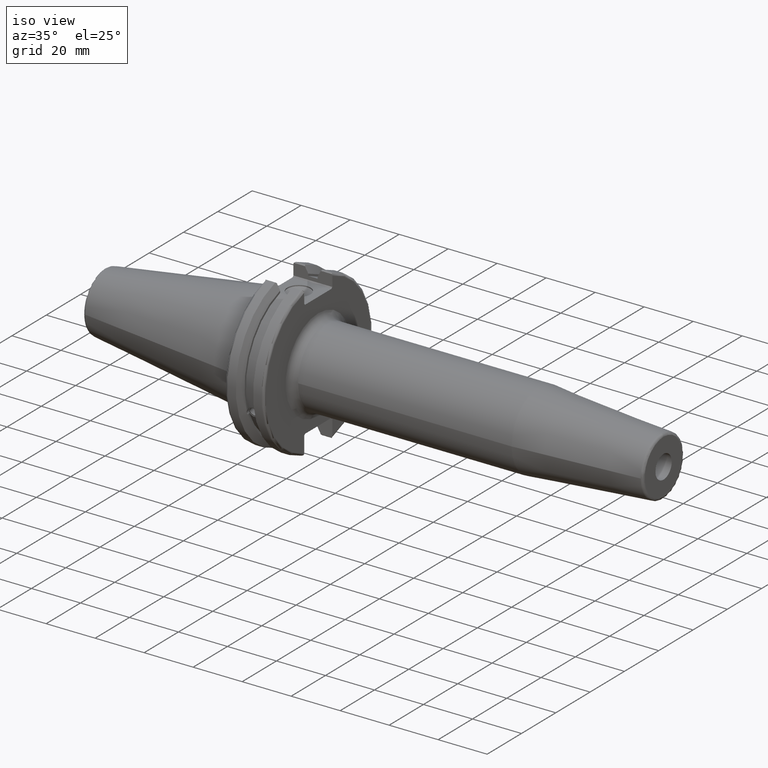
[diagram: clean part render]
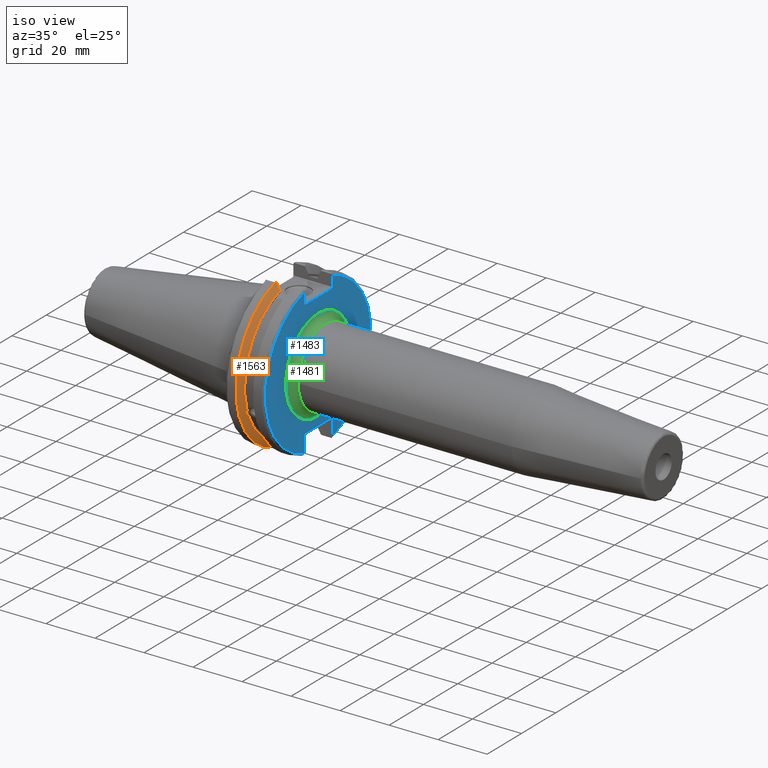
[diagram: same view with three faces highlighted in distinct colors, each labeled with its STEP entity id]
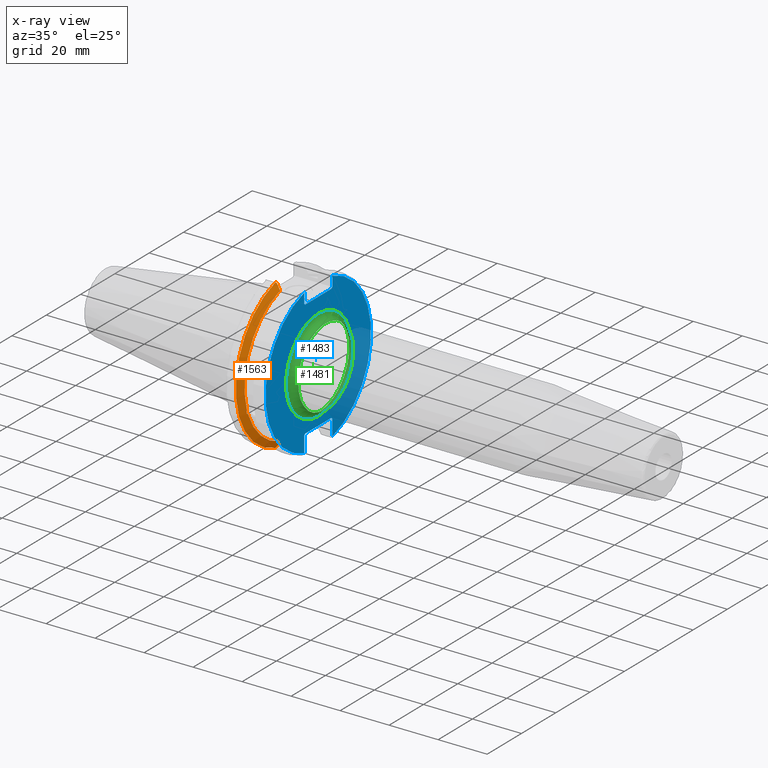
[diagram: x-ray of the same camera — body ghosted, the three highlighted faces saturated]
A machine part, iso view with three faces highlighted in distinct colors.
The next image is the same camera in x-ray (body ghosted, the three faces saturated) — at least one of them is partly hidden behind the body in this view.
Their STEP definitions:

[orange] entity #1563 — the highlighted conical surface has half-angle 60 deg.
#25=(
BOUNDED_CURVE()
B_SPLINE_CURVE(2,(#2817,#2818,#2819),.UNSPECIFIED.,.F.,.F.)
B_SPLINE_CURVE_WITH_KNOTS((3,3),(0.,0.276549142796136),.UNSPECIFIED.)
CURVE()
GEOMETRIC_REPRESENTATION_ITEM()
RATIONAL_B_SPLINE_CURVE((1.,1.00095203903316,1.00031614444813))
REPRESENTATION_ITEM('')
);
#26=(
BOUNDED_CURVE()
B_SPLINE_CURVE(2,(#2829,#2830,#2831),.UNSPECIFIED.,.F.,.F.)
B_SPLINE_CURVE_WITH_KNOTS((3,3),(0.0550586467392022,0.33160778953585),
 .UNSPECIFIED.)
CURVE()
GEOMETRIC_REPRESENTATION_ITEM()
RATIONAL_B_SPLINE_CURVE((1.00031614445148,1.00095203904325,1.))
REPRESENTATION_ITEM('')
);
#27=(
BOUNDED_CURVE()
B_SPLINE_CURVE(2,(#2864,#2865,#2866),.UNSPECIFIED.,.F.,.F.)
B_SPLINE_CURVE_WITH_KNOTS((3,3),(0.,0.0639048713676282),.UNSPECIFIED.)
CURVE()
GEOMETRIC_REPRESENTATION_ITEM()
RATIONAL_B_SPLINE_CURVE((1.,1.00028444218284,1.00047644010574))
REPRESENTATION_ITEM('')
);
#28=(
BOUNDED_CURVE()
B_SPLINE_CURVE(2,(#2872,#2873,#2874),.UNSPECIFIED.,.F.,.F.)
B_SPLINE_CURVE_WITH_KNOTS((3,3),(0.329353533631205,0.393258405001025),
 .UNSPECIFIED.)
CURVE()
GEOMETRIC_REPRESENTATION_ITEM()
RATIONAL_B_SPLINE_CURVE((1.00047644010572,1.00028444218283,1.))
REPRESENTATION_ITEM('')
);
#55=B_SPLINE_CURVE_WITH_KNOTS('',3,(#2427,#2428,#2429,#2430,#2431,#2432,
#2433,#2434,#2435,#2436,#2437,#2438,#2439,#2440),.UNSPECIFIED.,.F.,.F.,
(4,2,2,2,2,2,4),(0.451995700189024,0.464547828547663,0.504528771685167,
0.544509714822672,0.584490657960178,0.624471601097683,0.63702372945632),
 .UNSPECIFIED.);
#361=CONICAL_SURFACE('',#1763,30.3546886482472,1.0471975511966);
#447=FACE_OUTER_BOUND('',#550,.T.);
#550=EDGE_LOOP('',(#1458,#1459,#1460,#1461,#1462,#1463,#1464,#1465));
#582=CIRCLE('',#1653,28.9593772964944);
#606=CIRCLE('',#1713,31.75);
#624=CIRCLE('',#1764,28.9593772964944);
#669=VERTEX_POINT('',#2424);
#670=VERTEX_POINT('',#2426);
#687=VERTEX_POINT('',#2519);
#749=VERTEX_POINT('',#2814);
#750=VERTEX_POINT('',#2816);
#753=VERTEX_POINT('',#2828);
#757=VERTEX_POINT('',#2862);
#758=VERTEX_POINT('',#2868);
#835=EDGE_CURVE('',#670,#669,#55,.T.);
#859=EDGE_CURVE('',#670,#687,#582,.T.);
#946=EDGE_CURVE('',#750,#749,#25,.T.);
#952=EDGE_CURVE('',#753,#687,#26,.T.);
#960=EDGE_CURVE('',#757,#749,#27,.T.);
#962=EDGE_CURVE('',#757,#758,#606,.T.);
#963=EDGE_CURVE('',#753,#758,#28,.T.);
#1007=EDGE_CURVE('',#750,#669,#624,.T.);
#1458=ORIENTED_EDGE('',*,*,#835,.T.);
#1459=ORIENTED_EDGE('',*,*,#1007,.F.);
#1460=ORIENTED_EDGE('',*,*,#946,.T.);
#1461=ORIENTED_EDGE('',*,*,#960,.F.);
#1462=ORIENTED_EDGE('',*,*,#962,.T.);
#1463=ORIENTED_EDGE('',*,*,#963,.F.);
#1464=ORIENTED_EDGE('',*,*,#952,.T.);
#1465=ORIENTED_EDGE('',*,*,#859,.F.);
#1563=ADVANCED_FACE('',(#447),#361,.T.);
#1653=AXIS2_PLACEMENT_3D('',#2520,#1928,#1929);
#1713=AXIS2_PLACEMENT_3D('',#2870,#2091,#2092);
#1763=AXIS2_PLACEMENT_3D('',#2990,#2212,#2213);
#1764=AXIS2_PLACEMENT_3D('',#2991,#2214,#2215);
#1928=DIRECTION('center_axis',(1.,0.,0.));
#1929=DIRECTION('ref_axis',(0.,0.,-1.));
#2091=DIRECTION('center_axis',(1.,0.,0.));
#2092=DIRECTION('ref_axis',(0.,0.,-1.));
#2212=DIRECTION('center_axis',(-1.,0.,0.));
#2213=DIRECTION('ref_axis',(0.,-1.,-1.22464679914735E-16));
#2214=DIRECTION('center_axis',(1.,0.,0.));
#2215=DIRECTION('ref_axis',(0.,0.,-1.));
#2424=CARTESIAN_POINT('',(9.2191,-27.4956274489925,-9.09043478536245));
#2426=CARTESIAN_POINT('',(9.2191,-26.9060914640648,-10.7101715919071));
#2427=CARTESIAN_POINT('Ctrl Pts',(9.2191,-26.9060914640648,-10.7101715919071));
#2428=CARTESIAN_POINT('Ctrl Pts',(9.20497959280038,-26.9406927482839,-10.6893765730703));
#2429=CARTESIAN_POINT('Ctrl Pts',(9.19150701821433,-26.9744191989197,-10.6676007180673));
#2430=CARTESIAN_POINT('Ctrl Pts',(9.13811855884095,-27.1113422433189,-10.5723885976054));
#2431=CARTESIAN_POINT('Ctrl Pts',(9.09998029158246,-27.2180531796526,-10.4801333026531));
#2432=CARTESIAN_POINT('Ctrl Pts',(9.04778935539424,-27.3968610665578,-10.2639559818059));
#2433=CARTESIAN_POINT('Ctrl Pts',(9.0341,-27.4684373304961,-10.139516340139));
#2434=CARTESIAN_POINT('Ctrl Pts',(9.0341,-27.559599249844,-9.8890510252165));
#2435=CARTESIAN_POINT('Ctrl Pts',(9.04778935539424,-27.5847569104122,-9.74771639360671));
#2436=CARTESIAN_POINT('Ctrl Pts',(9.09998029158246,-27.5867382255984,-9.46717946402648));
#2437=CARTESIAN_POINT('Ctrl Pts',(9.13811855884095,-27.5642934663232,-9.32791534028655));
#2438=CARTESIAN_POINT('Ctrl Pts',(9.19150701821434,-27.5206055003512,-9.16696618806877));
#2439=CARTESIAN_POINT('Ctrl Pts',(9.20497959280038,-27.5087667900418,-9.12860597076217));
#2440=CARTESIAN_POINT('Ctrl Pts',(9.2191,-27.4956274489925,-9.09043478536245));
#2519=CARTESIAN_POINT('',(9.2191,-8.19,-27.7771386827498));
#2520=CARTESIAN_POINT('Origin',(9.2191,0.,0.));
#2814=CARTESIAN_POINT('',(7.88668530351257,-8.19,30.1755016258903));
#2816=CARTESIAN_POINT('',(9.2191,-8.19,27.7771386827498));
#2817=CARTESIAN_POINT('Ctrl Pts',(9.2191,-8.19,27.7771386827498));
#2818=CARTESIAN_POINT('Ctrl Pts',(8.58046356152393,-8.19,28.9303689539705));
#2819=CARTESIAN_POINT('Ctrl Pts',(7.88668530351257,-8.19,30.1755016258903));
#2828=CARTESIAN_POINT('',(7.88668530351256,-8.19,-30.1755016258903));
#2829=CARTESIAN_POINT('Ctrl Pts',(7.88668530351256,-8.19,-30.1755016258903));
#2830=CARTESIAN_POINT('Ctrl Pts',(8.5804635615235,-8.19,-28.9303689539712));
#2831=CARTESIAN_POINT('Ctrl Pts',(9.2191,-8.19,-27.7771386827498));
#2862=CARTESIAN_POINT('',(7.60793323092436,-8.67204822802685,30.5427254764662));
#2864=CARTESIAN_POINT('Ctrl Pts',(7.60793323092436,-8.67204822802686,30.5427254764662));
#2865=CARTESIAN_POINT('Ctrl Pts',(7.74899148121626,-8.42917748262648,30.357706789263));
#2866=CARTESIAN_POINT('Ctrl Pts',(7.88668530351257,-8.19,30.1755016258903));
#2868=CARTESIAN_POINT('',(7.60793323092436,-8.67204822802685,-30.5427254764662));
#2870=CARTESIAN_POINT('Origin',(7.60793323092436,0.,0.));
#2872=CARTESIAN_POINT('Ctrl Pts',(7.88668530351256,-8.19,-30.1755016258903));
#2873=CARTESIAN_POINT('Ctrl Pts',(7.74899148121159,-8.42917748263467,-30.3577067892692));
#2874=CARTESIAN_POINT('Ctrl Pts',(7.60793323092435,-8.67204822802687,-30.5427254764662));
#2990=CARTESIAN_POINT('Origin',(8.41351661546218,0.,0.));
#2991=CARTESIAN_POINT('Origin',(9.2191,0.,0.));

[blue] entity #1483 — the highlighted planar face has unit normal (1, 0, 0).
#109=FACE_BOUND('',#456,.T.);
#125=PLANE('',#1603);
#163=LINE('',#2249,#257);
#164=LINE('',#2251,#258);
#165=LINE('',#2253,#259);
#166=LINE('',#2255,#260);
#167=LINE('',#2257,#261);
#168=LINE('',#2261,#262);
#169=LINE('',#2263,#263);
#170=LINE('',#2265,#264);
#171=LINE('',#2267,#265);
#172=LINE('',#2268,#266);
#257=VECTOR('',#1804,10.);
#258=VECTOR('',#1805,10.);
#259=VECTOR('',#1806,10.);
#260=VECTOR('',#1807,10.);
#261=VECTOR('',#1808,10.);
#262=VECTOR('',#1811,10.);
#263=VECTOR('',#1812,10.);
#264=VECTOR('',#1813,10.);
#265=VECTOR('',#1814,10.);
#266=VECTOR('',#1815,10.);
#367=FACE_OUTER_BOUND('',#455,.T.);
#455=EDGE_LOOP('',(#1030,#1031,#1032,#1033,#1034,#1035,#1036,#1037,#1038,
#1039,#1040,#1041));
#456=EDGE_LOOP('',(#1042));
#560=CIRCLE('',#1600,19.);
#562=CIRCLE('',#1604,30.75);
#563=CIRCLE('',#1605,30.75);
#632=VERTEX_POINT('',#2238);
#633=VERTEX_POINT('',#2245);
#634=VERTEX_POINT('',#2246);
#635=VERTEX_POINT('',#2248);
#636=VERTEX_POINT('',#2250);
#637=VERTEX_POINT('',#2252);
#638=VERTEX_POINT('',#2254);
#639=VERTEX_POINT('',#2256);
#640=VERTEX_POINT('',#2258);
#641=VERTEX_POINT('',#2260);
#642=VERTEX_POINT('',#2262);
#643=VERTEX_POINT('',#2264);
#644=VERTEX_POINT('',#2266);
#786=EDGE_CURVE('',#632,#632,#560,.T.);
#789=EDGE_CURVE('',#633,#634,#562,.T.);
#790=EDGE_CURVE('',#633,#635,#163,.T.);
#791=EDGE_CURVE('',#636,#635,#164,.T.);
#792=EDGE_CURVE('',#636,#637,#165,.T.);
#793=EDGE_CURVE('',#638,#637,#166,.T.);
#794=EDGE_CURVE('',#638,#639,#167,.T.);
#795=EDGE_CURVE('',#640,#639,#563,.T.);
#796=EDGE_CURVE('',#640,#641,#168,.T.);
#797=EDGE_CURVE('',#642,#641,#169,.T.);
#798=EDGE_CURVE('',#642,#643,#170,.T.);
#799=EDGE_CURVE('',#644,#643,#171,.T.);
#800=EDGE_CURVE('',#644,#634,#172,.T.);
#1030=ORIENTED_EDGE('',*,*,#789,.F.);
#1031=ORIENTED_EDGE('',*,*,#790,.T.);
#1032=ORIENTED_EDGE('',*,*,#791,.F.);
#1033=ORIENTED_EDGE('',*,*,#792,.T.);
#1034=ORIENTED_EDGE('',*,*,#793,.F.);
#1035=ORIENTED_EDGE('',*,*,#794,.T.);
#1036=ORIENTED_EDGE('',*,*,#795,.F.);
#1037=ORIENTED_EDGE('',*,*,#796,.T.);
#1038=ORIENTED_EDGE('',*,*,#797,.F.);
#1039=ORIENTED_EDGE('',*,*,#798,.T.);
#1040=ORIENTED_EDGE('',*,*,#799,.F.);
#1041=ORIENTED_EDGE('',*,*,#800,.T.);
#1042=ORIENTED_EDGE('',*,*,#786,.F.);
#1483=ADVANCED_FACE('',(#367,#109),#125,.T.);
#1600=AXIS2_PLACEMENT_3D('',#2240,#1793,#1794);
#1603=AXIS2_PLACEMENT_3D('',#2244,#1800,#1801);
#1604=AXIS2_PLACEMENT_3D('',#2247,#1802,#1803);
#1605=AXIS2_PLACEMENT_3D('',#2259,#1809,#1810);
#1793=DIRECTION('center_axis',(1.,0.,0.));
#1794=DIRECTION('ref_axis',(0.,-1.,-1.22464679914735E-16));
#1800=DIRECTION('center_axis',(1.,0.,0.));
#1801=DIRECTION('ref_axis',(0.,0.,-1.));
#1802=DIRECTION('center_axis',(-1.,0.,0.));
#1803=DIRECTION('ref_axis',(0.,1.,-6.12323399573677E-17));
#1804=DIRECTION('',(0.,0.,-1.));
#1805=DIRECTION('',(0.,0.707106781186549,0.707106781186546));
#1806=DIRECTION('',(0.,-1.,0.));
#1807=DIRECTION('',(0.,0.70710678118655,-0.707106781186545));
#1808=DIRECTION('',(0.,0.,1.));
#1809=DIRECTION('center_axis',(-1.,0.,0.));
#1810=DIRECTION('ref_axis',(0.,-1.,1.60812264967664E-16));
#1811=DIRECTION('',(0.,0.,1.));
#1812=DIRECTION('',(0.,-0.707106781186549,-0.707106781186546));
#1813=DIRECTION('',(0.,1.,0.));
#1814=DIRECTION('',(0.,-0.707106781186549,0.707106781186546));
#1815=DIRECTION('',(0.,0.,-1.));
#2238=CARTESIAN_POINT('',(19.05,-2.32682891837997E-15,-19.));
#2240=CARTESIAN_POINT('Origin',(19.05,0.,0.));
#2244=CARTESIAN_POINT('Origin',(19.05,0.,0.));
#2245=CARTESIAN_POINT('',(19.05,8.19,29.6392712461019));
#2246=CARTESIAN_POINT('',(19.05,8.19,-29.6392712461019));
#2247=CARTESIAN_POINT('Origin',(19.05,0.,0.));
#2248=CARTESIAN_POINT('',(19.05,8.19,25.5));
#2249=CARTESIAN_POINT('',(19.05,8.19,12.5));
#2250=CARTESIAN_POINT('',(19.05,7.69,25.));
#2251=CARTESIAN_POINT('',(19.05,-0.35750000000001,16.9525));
#2252=CARTESIAN_POINT('',(19.05,-7.69,25.));
#2253=CARTESIAN_POINT('',(19.05,0.,25.));
#2254=CARTESIAN_POINT('',(19.05,-8.19,25.5));
#2255=CARTESIAN_POINT('',(19.05,0.357500000000014,16.9525));
#2256=CARTESIAN_POINT('',(19.05,-8.19,29.6392712461019));
#2257=CARTESIAN_POINT('',(19.05,-8.19,12.5));
#2258=CARTESIAN_POINT('',(19.05,-8.19,-29.6392712461019));
#2259=CARTESIAN_POINT('Origin',(19.05,0.,0.));
#2260=CARTESIAN_POINT('',(19.05,-8.19,-23.1));
#2261=CARTESIAN_POINT('',(19.05,-8.19,-11.3));
#2262=CARTESIAN_POINT('',(19.05,-7.69,-22.6));
#2263=CARTESIAN_POINT('',(19.05,-0.242499999999991,-15.1525));
#2264=CARTESIAN_POINT('',(19.05,7.69,-22.6));
#2265=CARTESIAN_POINT('',(19.05,-2.77555756156289E-16,-22.6));
#2266=CARTESIAN_POINT('',(19.05,8.19,-23.1));
#2267=CARTESIAN_POINT('',(19.05,0.242499999999989,-15.1525));
#2268=CARTESIAN_POINT('',(19.05,8.19,-11.3));

[green] entity #1481 — the highlighted toroidal blend (fillet) surface has major radius 19 mm and minor (blend) radius 3 mm.
#365=FACE_OUTER_BOUND('',#453,.T.);
#453=EDGE_LOOP('',(#1020,#1021,#1022,#1023,#1024));
#558=CIRCLE('',#1598,16.);
#559=CIRCLE('',#1599,3.);
#560=CIRCLE('',#1600,19.);
#561=CIRCLE('',#1601,16.);
#630=VERTEX_POINT('',#2235);
#631=VERTEX_POINT('',#2236);
#632=VERTEX_POINT('',#2238);
#784=EDGE_CURVE('',#630,#631,#558,.T.);
#785=EDGE_CURVE('',#631,#632,#559,.T.);
#786=EDGE_CURVE('',#632,#632,#560,.T.);
#787=EDGE_CURVE('',#631,#630,#561,.T.);
#1020=ORIENTED_EDGE('',*,*,#784,.T.);
#1021=ORIENTED_EDGE('',*,*,#785,.T.);
#1022=ORIENTED_EDGE('',*,*,#786,.T.);
#1023=ORIENTED_EDGE('',*,*,#785,.F.);
#1024=ORIENTED_EDGE('',*,*,#787,.T.);
#1471=TOROIDAL_SURFACE('',#1597,19.,3.);
#1481=ADVANCED_FACE('',(#365),#1471,.F.);
#1597=AXIS2_PLACEMENT_3D('',#2234,#1787,#1788);
#1598=AXIS2_PLACEMENT_3D('',#2237,#1789,#1790);
#1599=AXIS2_PLACEMENT_3D('',#2239,#1791,#1792);
#1600=AXIS2_PLACEMENT_3D('',#2240,#1793,#1794);
#1601=AXIS2_PLACEMENT_3D('',#2241,#1795,#1796);
#1787=DIRECTION('center_axis',(-1.,0.,0.));
#1788=DIRECTION('ref_axis',(0.,0.,1.));
#1789=DIRECTION('center_axis',(-1.,0.,0.));
#1790=DIRECTION('ref_axis',(0.,-1.,-1.22464679914735E-16));
#1791=DIRECTION('center_axis',(0.,-1.,1.22464679914735E-16));
#1792=DIRECTION('ref_axis',(0.,-1.22464679914735E-16,-1.));
#1793=DIRECTION('center_axis',(1.,0.,0.));
#1794=DIRECTION('ref_axis',(0.,-1.,-1.22464679914735E-16));
#1795=DIRECTION('center_axis',(-1.,0.,0.));
#1796=DIRECTION('ref_axis',(0.,-1.,-1.22464679914735E-16));
#2234=CARTESIAN_POINT('Origin',(22.05,0.,0.));
#2235=CARTESIAN_POINT('',(22.05,-16.,-1.95943487863577E-15));
#2236=CARTESIAN_POINT('',(22.05,-1.95943487863577E-15,-16.));
#2237=CARTESIAN_POINT('Origin',(22.05,0.,0.));
#2238=CARTESIAN_POINT('',(19.05,-2.32682891837997E-15,-19.));
#2239=CARTESIAN_POINT('Origin',(22.05,-2.32682891837997E-15,-19.));
#2240=CARTESIAN_POINT('Origin',(19.05,0.,0.));
#2241=CARTESIAN_POINT('Origin',(22.05,0.,0.));